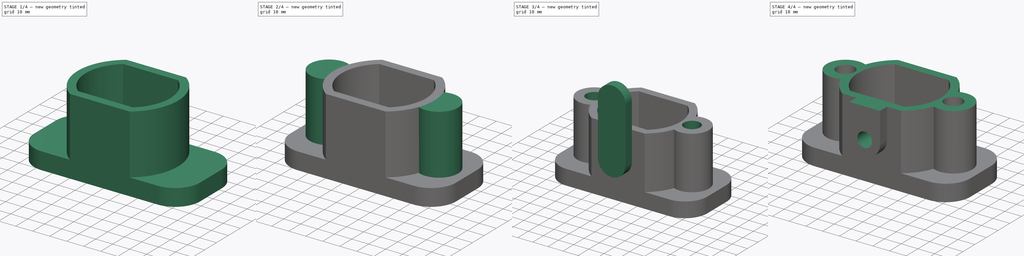
[diagram: build sequence overview — one tinted view per stage of 4, left to right]
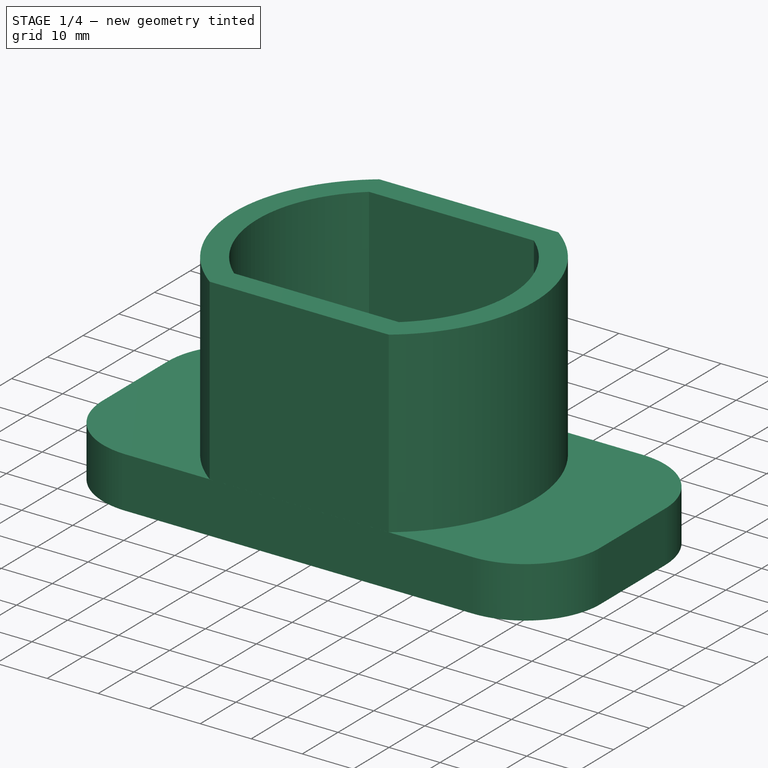
[diagram: stage 1 of 4 — iso view after this stage's code; geometry added in this stage tinted green]
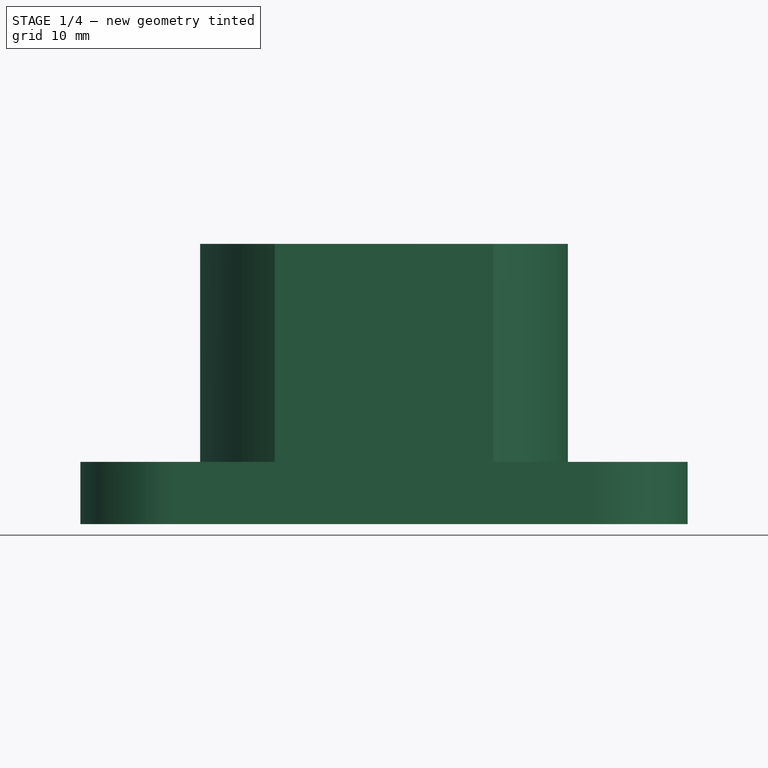
[diagram: stage 1 of 4 — front view after this stage's code; geometry added in this stage tinted green]
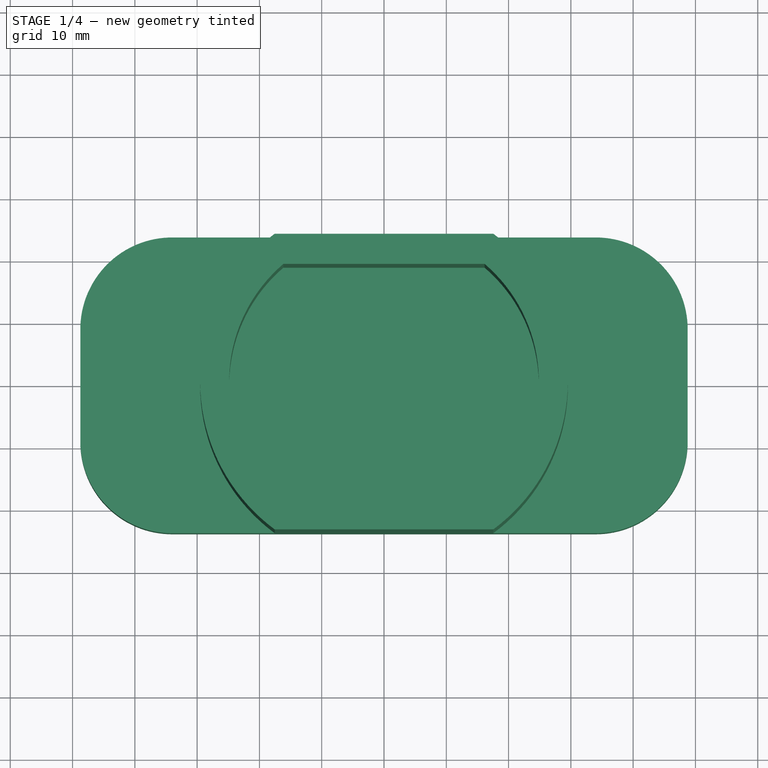
[diagram: stage 1 of 4 — top view after this stage's code; geometry added in this stage tinted green]
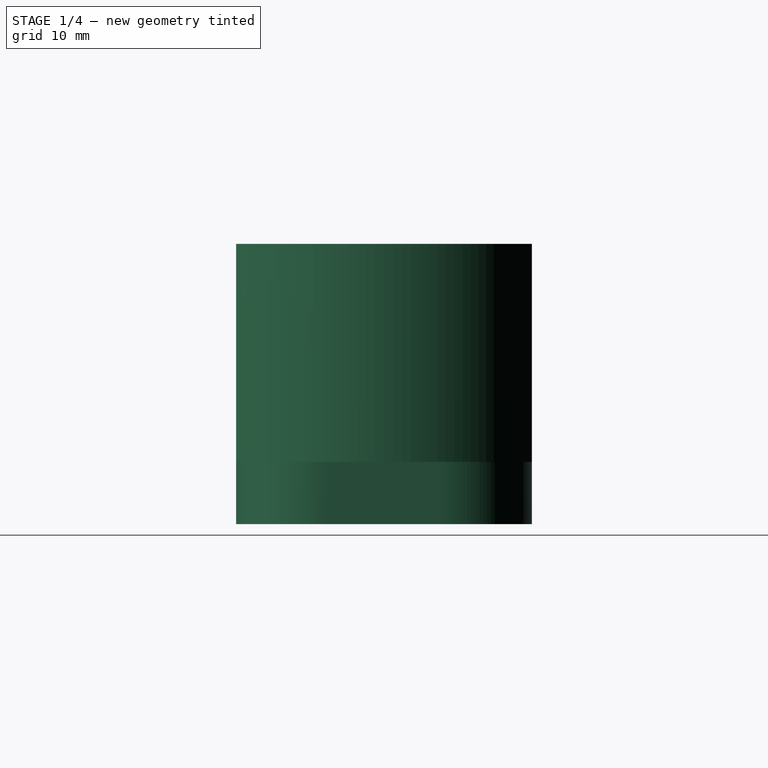
[diagram: stage 1 of 4 — right view after this stage's code; geometry added in this stage tinted green]
FCSTD DOCUMENT  (FreeCAD 0.21R33771 (Git))
Label: ex43
License: All rights reserved
LicenseURL: https://en.wikipedia.org/wiki/All_rights_reserved
objects: Sketcher::SketchObject×9, PartDesign::Pocket×5, PartDesign::Pad×4, PartDesign::Body×1
note: 28 computed .brp shape members not serialized (recipe doc carries the construction recipe); baked Part::Feature solids carry a one-line shape summary decoded from their .brp

FEATURE [Sketcher::SketchObject] Sketch
  FullyConstrained = false
  MapMode = 5
  Support = -> [XY_Plane]
  sketch-geometry (10):
    g0: ArcOfCircle CenterX=-34.0056 CenterY=8.99923 CenterZ=0 NormalX=0 NormalY=0 NormalZ=1 AngleXU=0 Radius=14.7484 StartAngle=1.5708 EndAngle=3.14159
    g1: LineSegment StartX=-34.0056 StartY=23.7476 StartZ=0 EndX=34.0056 EndY=23.7476 EndZ=0
    g2: ArcOfCircle CenterX=34.0056 CenterY=8.99923 CenterZ=0 NormalX=0 NormalY=0 NormalZ=1 AngleXU=0 Radius=14.7484 StartAngle=1e-16 EndAngle=1.5708
    g3: LineSegment StartX=48.754 StartY=8.99923 StartZ=0 EndX=48.754 EndY=-8.99923 EndZ=0
    g4: ArcOfCircle CenterX=34.0056 CenterY=-8.99923 CenterZ=0 NormalX=0 NormalY=0 NormalZ=1 AngleXU=0 Radius=14.7484 StartAngle=4.71239 EndAngle=6.28319
    g5: LineSegment StartX=34.0056 StartY=-23.7476 StartZ=0 EndX=-34.0056 EndY=-23.7476 EndZ=0
    g6: ArcOfCircle CenterX=-34.0056 CenterY=-8.99923 CenterZ=0 NormalX=0 NormalY=0 NormalZ=1 AngleXU=0 Radius=14.7484 StartAngle=3.14159 EndAngle=4.71239
    g7: LineSegment StartX=-48.754 StartY=-8.99923 StartZ=0 EndX=-48.754 EndY=8.99923 EndZ=0
    g8: GeomPoint X=-48.754 Y=23.7476 Z=0
    g9: GeomPoint X=48.754 Y=-23.7476 Z=0
  constraints (20):
    c: Tangent(g0,g1) = 1.5708
    c: Tangent(g1,g2) = 1.5708
    c: Tangent(g2,g3) = 1.5708
    c: Tangent(g3,g4) = 1.5708
    c: Tangent(g4,g5) = 1.5708
    c: Tangent(g5,g6) = 1.5708
    c: Tangent(g6,g7) = 1.5708
    c: Tangent(g7,g0) = 1.5708
    c: Horizontal(g1)
    c: Horizontal(g5)
    c: Vertical(g3)
    c: Vertical(g7)
    c: Equal(g0,g2)
    c: Equal(g2,g4)
    c: Equal(g4,g6)
    c: PointOnObject(g8,g1)
    c: PointOnObject(g8,g7)
    c: PointOnObject(g9,g3)
    c: PointOnObject(g9,g5)
    c: Symmetric(g0,g4,g-1)
FEATURE [PartDesign::Pad] Pad
  Direction = (0,0,1)
  Length = 10
  Length2 = 10
  Profile = -> Sketch
  ReferenceAxis = -> Sketch [N_Axis]
  Type = 0
FEATURE [Sketcher::SketchObject] Sketch001
  FullyConstrained = false
  MapMode = 5
  Placement = pos=(0,0,10) rot=(0,0,1;0rad)
  Support = -> [Pad]
  sketch-geometry (8):
    g0: ArcOfCircle CenterX=0 CenterY=0 CenterZ=0 NormalX=0 NormalY=0 NormalZ=1 AngleXU=0 Radius=29.5222 StartAngle=5.34883 EndAngle=7.21754
    g1: ArcOfCircle CenterX=0 CenterY=0 CenterZ=0 NormalX=0 NormalY=0 NormalZ=1 AngleXU=0 Radius=24.8586 StartAngle=5.41989 EndAngle=7.14648
    g2: LineSegment StartX=17.5461 StartY=23.7423 StartZ=0 EndX=-17.5461 EndY=23.7423 EndZ=0
    g3: LineSegment StartX=-16.1565 StartY=18.8923 StartZ=0 EndX=16.1565 EndY=18.8923 EndZ=0
    g4: LineSegment StartX=-16.1565 StartY=-18.8923 StartZ=0 EndX=16.1565 EndY=-18.8923 EndZ=0
    g5: LineSegment StartX=-17.5461 StartY=-23.7423 StartZ=0 EndX=17.5461 EndY=-23.7423 EndZ=0
    g6: ArcOfCircle CenterX=0 CenterY=0 CenterZ=0 NormalX=0 NormalY=0 NormalZ=1 AngleXU=0 Radius=24.8586 StartAngle=2.27829 EndAngle=4.00489
    g7: ArcOfCircle CenterX=0 CenterY=0 CenterZ=0 NormalX=0 NormalY=0 NormalZ=1 AngleXU=0 Radius=29.5222 StartAngle=2.20723 EndAngle=4.07595
  constraints (21):
    c: Coincident(g0,g-1)
    c: Coincident(g1,g0)
    c: Horizontal(g2)
    c: Horizontal(g3)
    c: Horizontal(g4)
    c: Horizontal(g5)
    c: Distance(g3,g2) = 4.85
    c: Distance(g4,g5) = 4.85
    c: Symmetric(g4,g3,g-1)
    c: Coincident(g1,g4)
    c: Coincident(g6,g4)
    c: Coincident(g7,g5)
    c: Coincident(g0,g5)
    c: Equal(g1,g6)
    c: Coincident(g6,g3)
    c: Coincident(g1,g6)
    c: Coincident(g1,g3)
    c: Equal(g0,g7)
    c: Coincident(g0,g2)
    c: Coincident(g7,g2)
    c: Coincident(g0,g7)
FEATURE [PartDesign::Pad] Pad001
  BaseFeature = -> Pad
  Direction = (0,0,1)
  Length = 35
  Length2 = 10
  Profile = -> Sketch001
  ReferenceAxis = -> Sketch001 [N_Axis]
  Type = 0
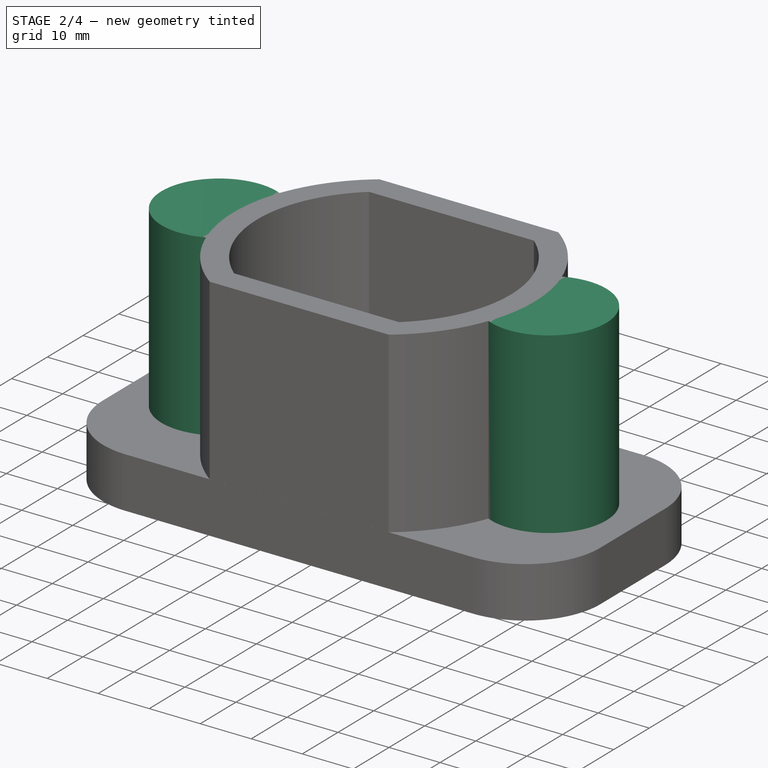
[diagram: stage 2 of 4 — iso view after this stage's code; geometry added in this stage tinted green]
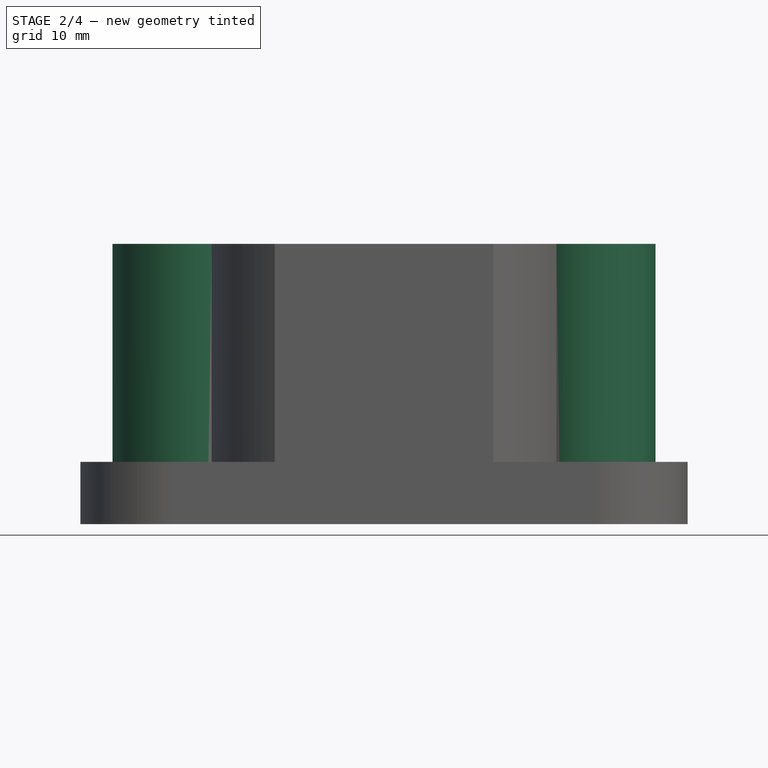
[diagram: stage 2 of 4 — front view after this stage's code; geometry added in this stage tinted green]
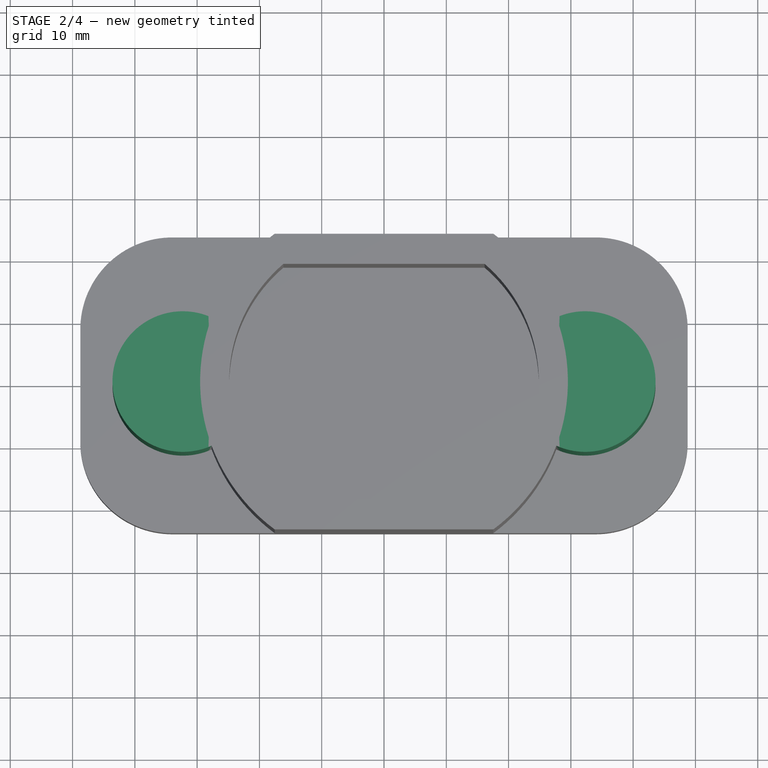
[diagram: stage 2 of 4 — top view after this stage's code; geometry added in this stage tinted green]
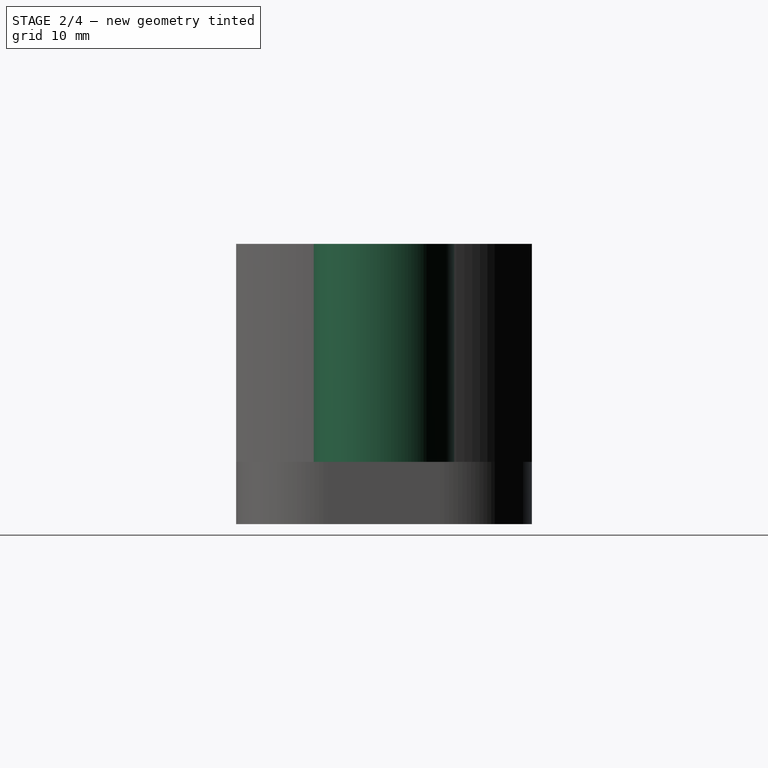
[diagram: stage 2 of 4 — right view after this stage's code; geometry added in this stage tinted green]
FEATURE [Sketcher::SketchObject] Sketch002
  FullyConstrained = false
  MapMode = 5
  Placement = pos=(0,0,10) rot=(0,0,1;0rad)
  Support = -> [Pad001]
  sketch-geometry (2):
    g0: Circle CenterX=32.3033 CenterY=0 CenterZ=0 NormalX=0 NormalY=0 NormalZ=1 AngleXU=0 Radius=11.2887
    g1: Circle CenterX=-32.3033 CenterY=0 CenterZ=0 NormalX=0 NormalY=0 NormalZ=1 AngleXU=0 Radius=11.2887
  constraints (3):
    c: PointOnObject(g0,g-1)
    c: Equal(g1,g0)
    c: Symmetric(g1,g0,g-1)
FEATURE [PartDesign::Pad] Pad002
  BaseFeature = -> Pad001
  Direction = (0,0,1)
  Length = 35
  Length2 = 10
  Profile = -> Sketch002
  ReferenceAxis = -> Sketch002 [N_Axis]
  Type = 0
FEATURE [Sketcher::SketchObject] Sketch004
  FullyConstrained = false
  MapMode = 5
  Placement = pos=(0,0,10) rot=(0,0,1;0rad)
  sketch-geometry (4):
    g0: ArcOfCircle CenterX=0 CenterY=0 CenterZ=0 NormalX=0 NormalY=0 NormalZ=1 AngleXU=0 Radius=24.8586 StartAngle=5.41989 EndAngle=7.14648
    g1: LineSegment StartX=-16.1565 StartY=18.8923 StartZ=0 EndX=16.1565 EndY=18.8923 EndZ=0
    g2: LineSegment StartX=-16.1565 StartY=-18.8923 StartZ=0 EndX=16.1565 EndY=-18.8923 EndZ=0
    g3: ArcOfCircle CenterX=0 CenterY=0 CenterZ=0 NormalX=0 NormalY=0 NormalZ=1 AngleXU=0 Radius=24.8586 StartAngle=2.27829 EndAngle=4.00489
  constraints (9):
    c: Horizontal(g1)
    c: Horizontal(g2)
    c: Symmetric(g2,g1,g-1)
    c: Coincident(g0,g2)
    c: Coincident(g3,g2)
    c: Equal(g0,g3)
    c: Coincident(g3,g1)
    c: Coincident(g0,g3)
    c: Coincident(g0,g1)
FEATURE [PartDesign::Pocket] Pocket
  BaseFeature = -> Pad002
  Direction = (0,0,-1)
  Length = 5
  Length2 = 5
  Profile = -> Sketch004
  ReferenceAxis = -> Sketch004 [N_Axis]
  Reversed = true
  Type = 1
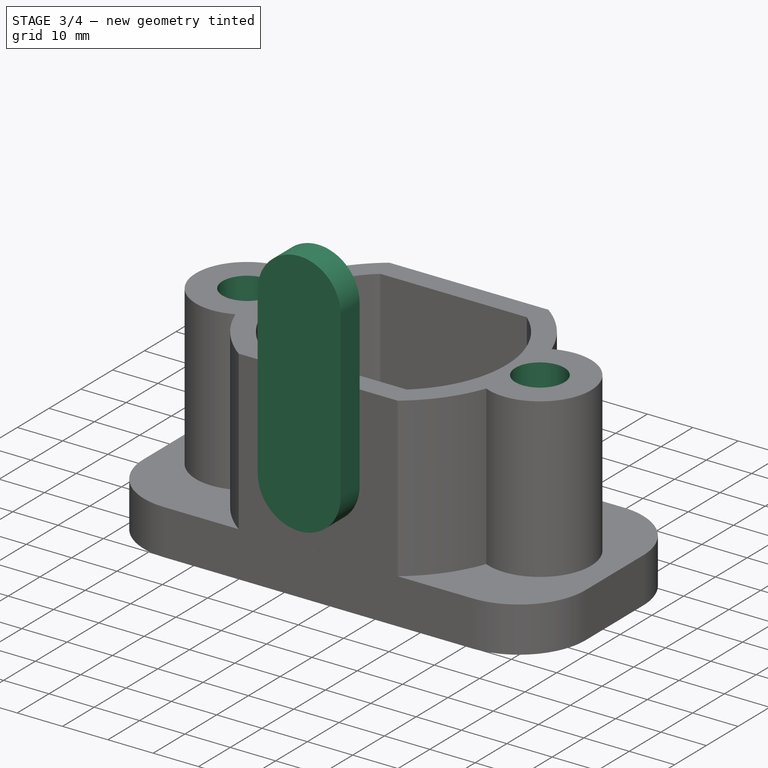
[diagram: stage 3 of 4 — iso view after this stage's code; geometry added in this stage tinted green]
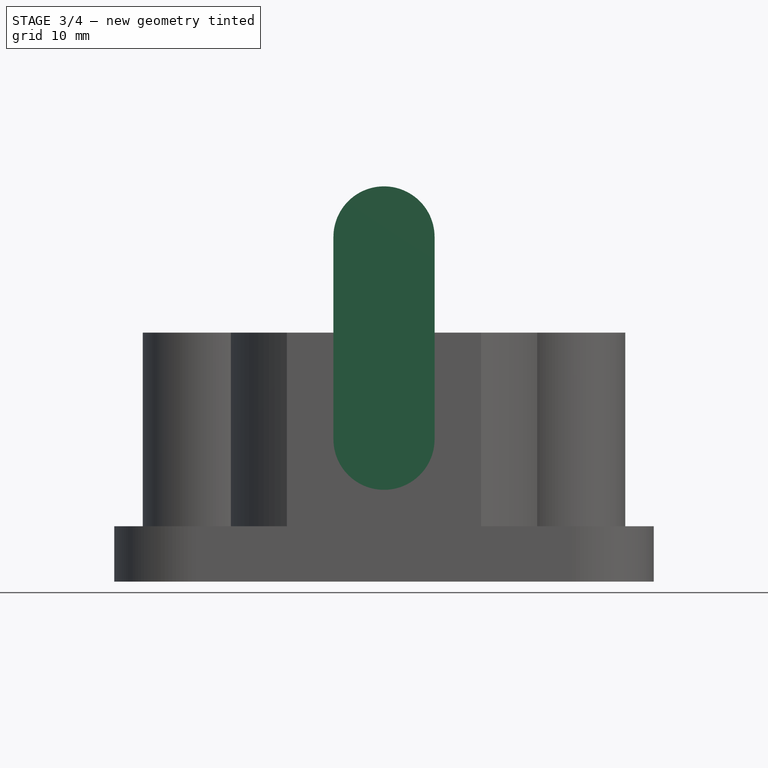
[diagram: stage 3 of 4 — front view after this stage's code; geometry added in this stage tinted green]
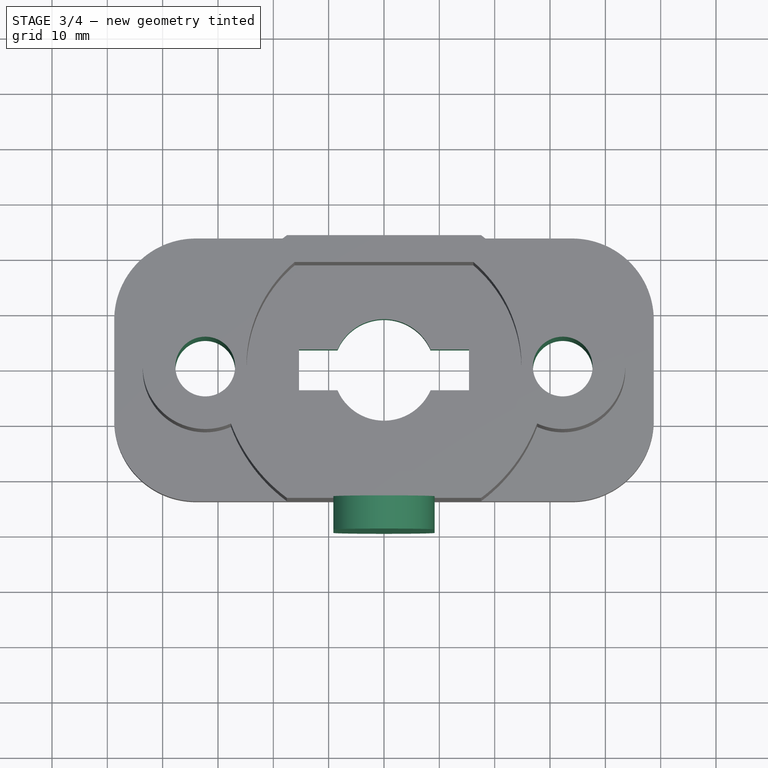
[diagram: stage 3 of 4 — top view after this stage's code; geometry added in this stage tinted green]
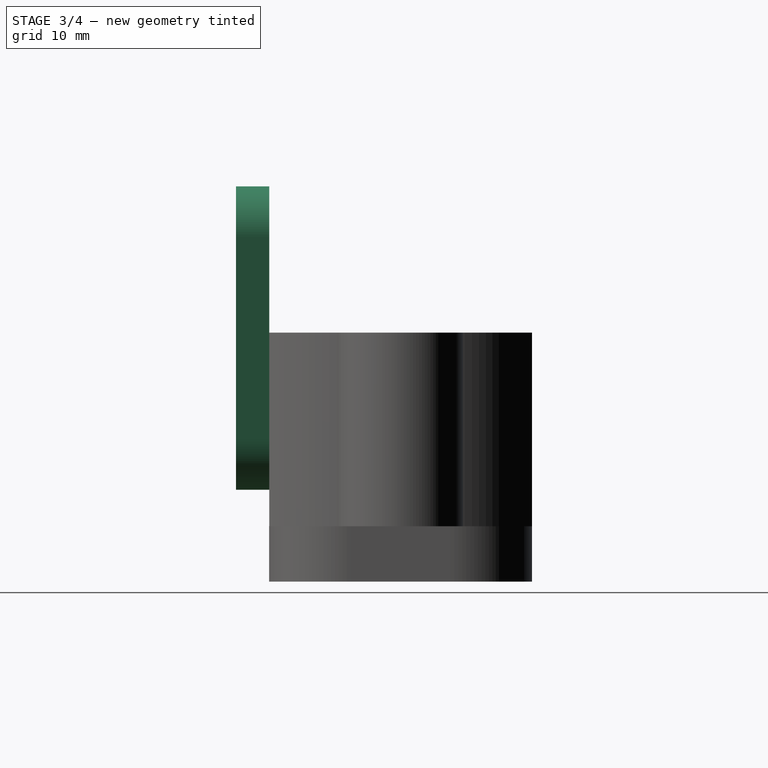
[diagram: stage 3 of 4 — right view after this stage's code; geometry added in this stage tinted green]
FEATURE [Sketcher::SketchObject] Sketch007
  FullyConstrained = false
  MapMode = 5
  Placement = pos=(0,0,10) rot=(0,0,1;0rad)
  sketch-geometry (2):
    g0: Circle CenterX=32.3033 CenterY=0 CenterZ=0 NormalX=0 NormalY=0 NormalZ=1 AngleXU=0 Radius=5.39665
    g1: Circle CenterX=-32.3033 CenterY=0 CenterZ=0 NormalX=0 NormalY=0 NormalZ=1 AngleXU=0 Radius=5.39665
  constraints (3):
    c: PointOnObject(g0,g-1)
    c: Equal(g1,g0)
    c: Symmetric(g1,g0,g-1)
FEATURE [PartDesign::Pocket] Pocket001
  BaseFeature = -> Pocket
  Direction = (0,0,-1)
  Length = 5
  Length2 = 5
  Midplane = true
  Profile = -> Sketch007
  ReferenceAxis = -> Sketch007 [N_Axis]
  Type = 1
FEATURE [Sketcher::SketchObject] Sketch008
  FullyConstrained = false
  MapMode = 5
  Placement = pos=(0,0,10) rot=(0,0,1;0rad)
  Support = -> [Pocket001]
  sketch-geometry (9):
    g0: ArcOfCircle CenterX=0 CenterY=0 CenterZ=0 NormalX=0 NormalY=0 NormalZ=1 AngleXU=0 Radius=9.17607 StartAngle=3.555 EndAngle=5.86978
    g1: LineSegment StartX=-15.353 StartY=3.68629 StartZ=0 EndX=-15.353 EndY=-3.68629 EndZ=0
    g2: LineSegment StartX=-15.353 StartY=-3.68629 StartZ=0 EndX=-8.40306 EndY=-3.68629 EndZ=0
    g3: LineSegment StartX=15.353 StartY=-3.68629 StartZ=0 EndX=15.353 EndY=3.68629 EndZ=0
    g4: LineSegment StartX=15.353 StartY=3.68629 StartZ=0 EndX=8.40306 EndY=3.68629 EndZ=0
    g5: GeomPoint X=0 Y=0 Z=0
    g6: LineSegment StartX=-8.40306 StartY=3.68629 StartZ=0 EndX=-15.353 EndY=3.68629 EndZ=0
    g7: LineSegment StartX=8.40306 StartY=-3.68629 StartZ=0 EndX=15.353 EndY=-3.68629 EndZ=0
    g8: ArcOfCircle CenterX=0 CenterY=0 CenterZ=0 NormalX=0 NormalY=0 NormalZ=1 AngleXU=0 Radius=9.17607 StartAngle=0.413404 EndAngle=2.72819
  constraints (17):
    c: Coincident(g0,g-1)
    c: Coincident(g1,g2)
    c: Coincident(g7,g3)
    c: Coincident(g3,g4)
    c: Coincident(g6,g1)
    c: Horizontal(g2)
    c: Horizontal(g4)
    c: Vertical(g1)
    c: Vertical(g3)
    c: Symmetric(g7,g1,g5)
    c: Coincident(g5,g0)
    c: Coincident(g8,g6)
    c: Coincident(g2,g0)
    c: Equal(g0,g8)
    c: Coincident(g0,g7)
    c: Coincident(g8,g4)
    c: Coincident(g0,g8)
FEATURE [PartDesign::Pocket] Pocket002
  BaseFeature = -> Pocket001
  Direction = (0,0,-1)
  Length = 5
  Length2 = 5
  Profile = -> Sketch008
  ReferenceAxis = -> Sketch008 [N_Axis]
  Type = 1
FEATURE [Sketcher::SketchObject] Sketch009
  FullyConstrained = false
  MapMode = 5
  Placement = pos=(0,-23.7423,0) rot=(1,0,0;1.5708rad)
  Support = -> [Pocket002]
  sketch-geometry (5):
    g0: ArcOfCircle CenterX=0 CenterY=25.7297 CenterZ=0 NormalX=0 NormalY=0 NormalZ=1 AngleXU=0 Radius=9.13961 StartAngle=3.14159 EndAngle=6.28319
    g1: ArcOfCircle CenterX=0 CenterY=62.2881 CenterZ=0 NormalX=0 NormalY=0 NormalZ=1 AngleXU=0 Radius=9.13961 StartAngle=0 EndAngle=3.14159
    g2: LineSegment StartX=9.13961 StartY=25.7297 StartZ=0 EndX=9.13961 EndY=62.2881 EndZ=0
    g3: LineSegment StartX=-9.13961 StartY=62.2881 StartZ=0 EndX=-9.13961 EndY=25.7297 EndZ=0
    g4: Circle CenterX=0 CenterY=25.7297 CenterZ=0 NormalX=0 NormalY=0 NormalZ=1 AngleXU=0 Radius=4.39625
  constraints (8):
    c: Tangent(g0,g2) = -1.5708
    c: Tangent(g2,g1) = -1.5708
    c: Tangent(g1,g3) = -1.5708
    c: Tangent(g3,g0) = -1.5708
    c: Equal(g0,g1)
    c: PointOnObject(g0,g-2)
    c: PointOnObject(g1,g-2)
    c: Coincident(g4,g0)
FEATURE [Sketcher::SketchObject] Sketch010
  FullyConstrained = false
  MapMode = 5
  Placement = pos=(0,-23.7423,0) rot=(1,0,0;1.5708rad)
  Support = -> [Pocket002]
  sketch-geometry (1):
    g0: Circle CenterX=0 CenterY=25.7297 CenterZ=0 NormalX=0 NormalY=0 NormalZ=1 AngleXU=0 Radius=4.39625
FEATURE [PartDesign::Pad] Pad003
  BaseFeature = -> Pocket002
  Direction = (0,-1,2e-16)
  Length = 6
  Length2 = 10
  Profile = -> Sketch009
  ReferenceAxis = -> Sketch009 [N_Axis]
  Type = 0
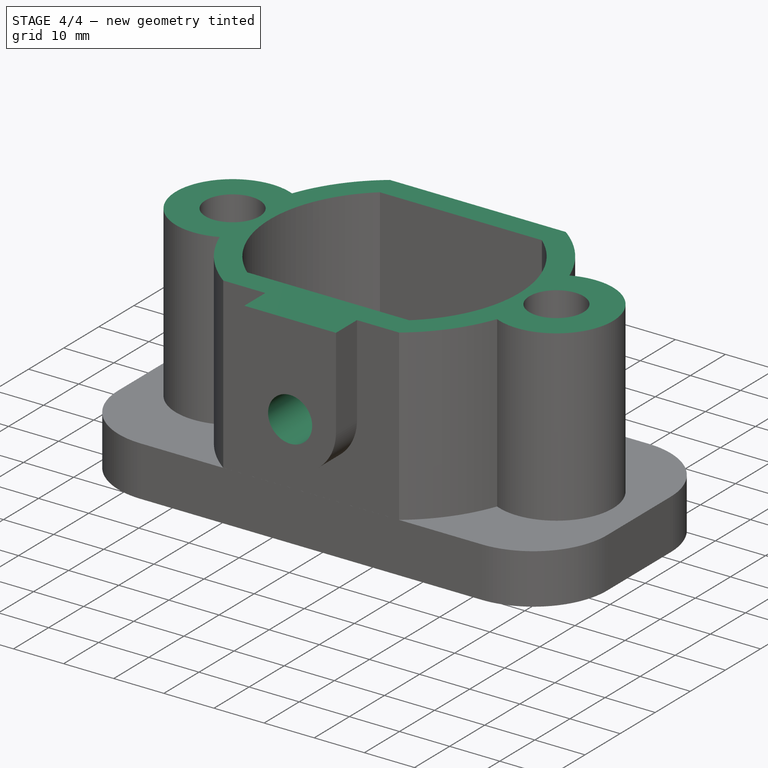
[diagram: stage 4 of 4 — iso view after this stage's code; geometry added in this stage tinted green]
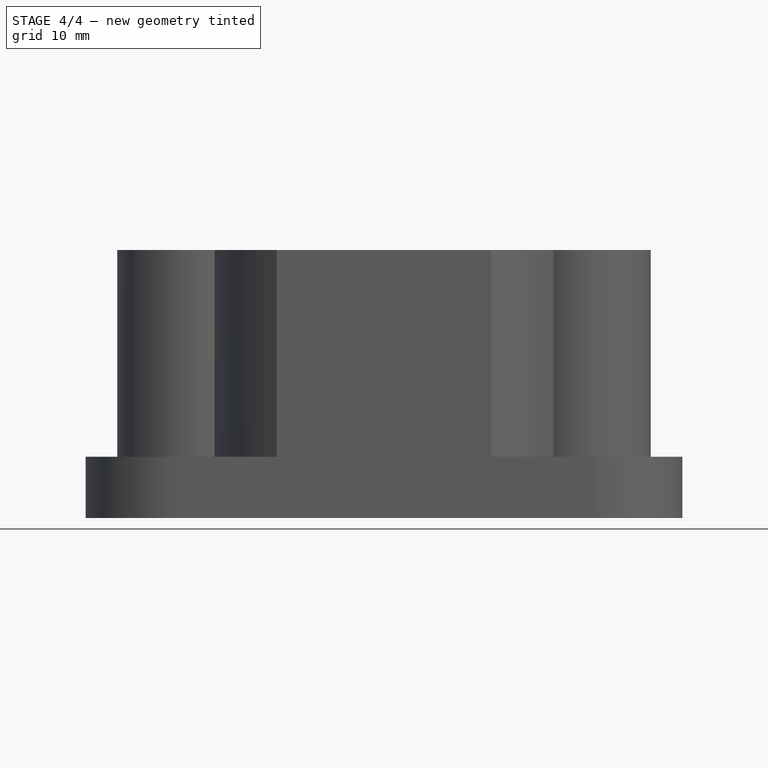
[diagram: stage 4 of 4 — front view after this stage's code; geometry added in this stage tinted green]
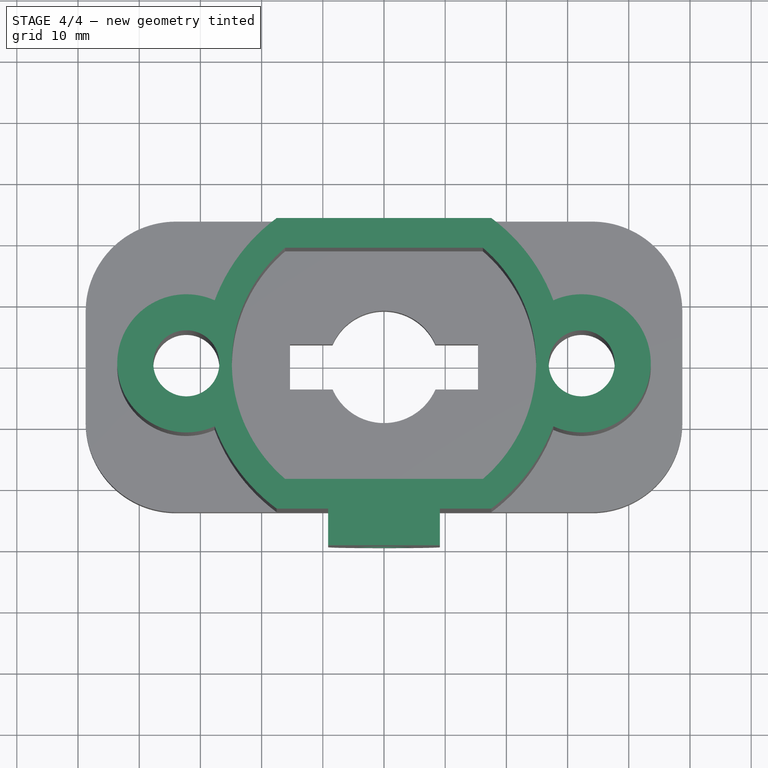
[diagram: stage 4 of 4 — top view after this stage's code; geometry added in this stage tinted green]
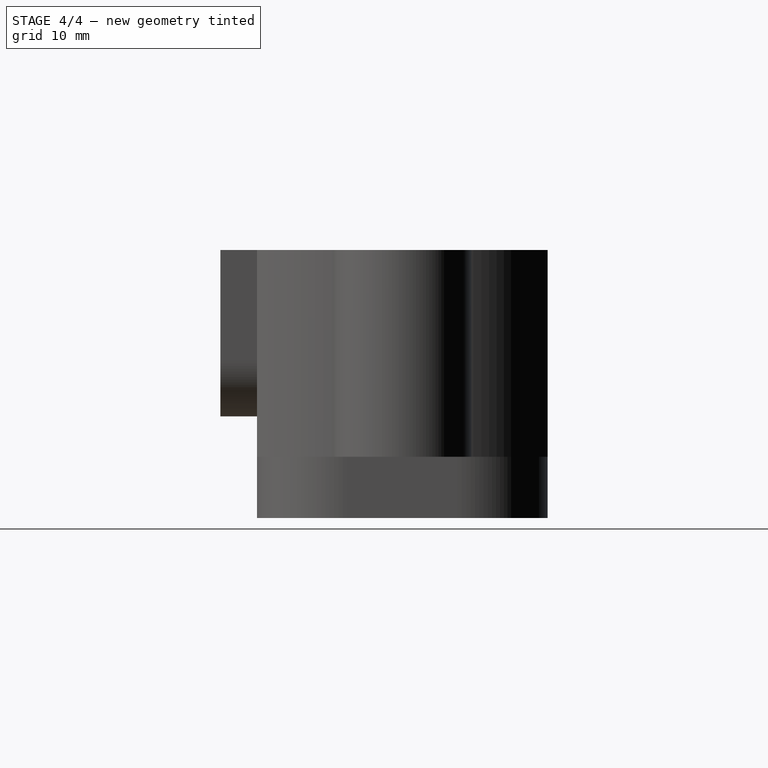
[diagram: stage 4 of 4 — right view after this stage's code; geometry added in this stage tinted green]
FEATURE [PartDesign::Pocket] Pocket003
  BaseFeature = -> Pad003
  Direction = (0,1,-2e-16)
  Length = 14
  Length2 = 5
  Midplane = true
  Profile = -> Sketch010
  ReferenceAxis = -> Sketch010 [N_Axis]
  Type = 0
FEATURE [Sketcher::SketchObject] Sketch011
  FullyConstrained = false
  MapMode = 5
  Placement = pos=(0,0,0) rot=(1,0,0;1.5708rad)
  Support = -> [XZ_Plane]
  sketch-geometry (5):
    g0: LineSegment StartX=-51.6526 StartY=119.795 StartZ=0 EndX=-51.6526 EndY=43.7762 EndZ=0
    g1: LineSegment StartX=-51.6526 StartY=43.7762 StartZ=0 EndX=51.6526 EndY=43.7762 EndZ=0
    g2: LineSegment StartX=51.6526 StartY=43.7762 StartZ=0 EndX=51.6526 EndY=119.795 EndZ=0
    g3: LineSegment StartX=51.6526 StartY=119.795 StartZ=0 EndX=-51.6526 EndY=119.795 EndZ=0
    g4: GeomPoint X=0 Y=81.7854 Z=0
  constraints (10):
    c: Coincident(g0,g1)
    c: Coincident(g1,g2)
    c: Coincident(g2,g3)
    c: Coincident(g3,g0)
    c: Horizontal(g1)
    c: Horizontal(g3)
    c: Vertical(g0)
    c: Vertical(g2)
    c: Symmetric(g1,g0,g4)
    c: PointOnObject(g4,g-2)
FEATURE [PartDesign::Pocket] Pocket004
  BaseFeature = -> Pocket003
  Direction = (0,1,-2e-16)
  Length = 5
  Length2 = 5
  Midplane = true
  Profile = -> Sketch011
  ReferenceAxis = -> Sketch011 [N_Axis]
  Type = 1
FEATURE [PartDesign::Body] Body
  Group = -> [Sketch,Pad,Sketch001,Pad001,Sketch002,Pad002,Sketch004,Pocket,Sketch007,Pocket001,Sketch008,Pocket002,Sketch009,Sketch010,Pad003,Pocket003,Sketch011,Pocket004]
  Origin = -> Origin
  Tip = -> Pocket004
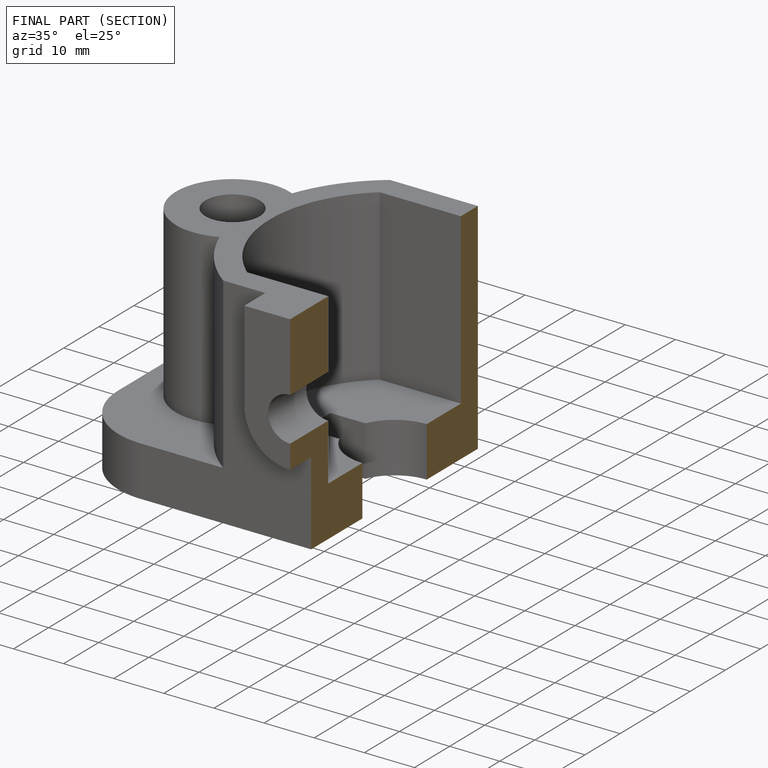
[diagram: finished part — half-section view (interior)]
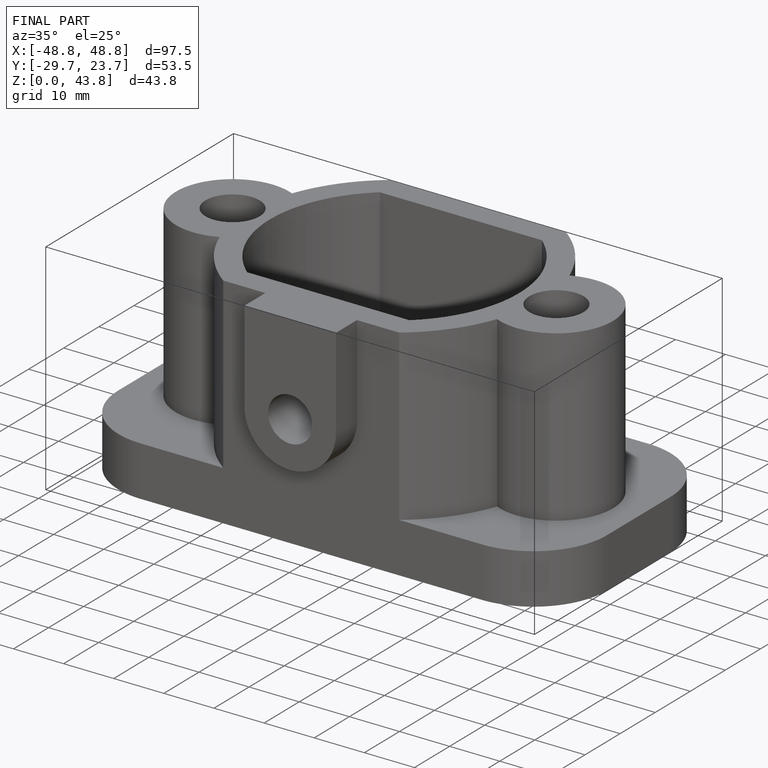
[diagram: finished part — iso view with bounding-box wireframe]
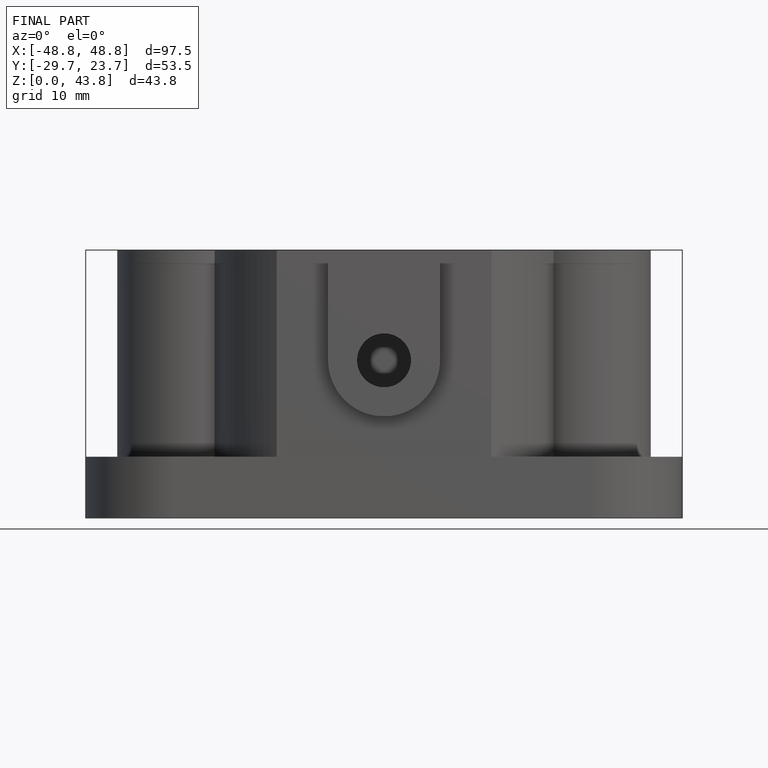
[diagram: finished part — front view with bounding-box wireframe]
